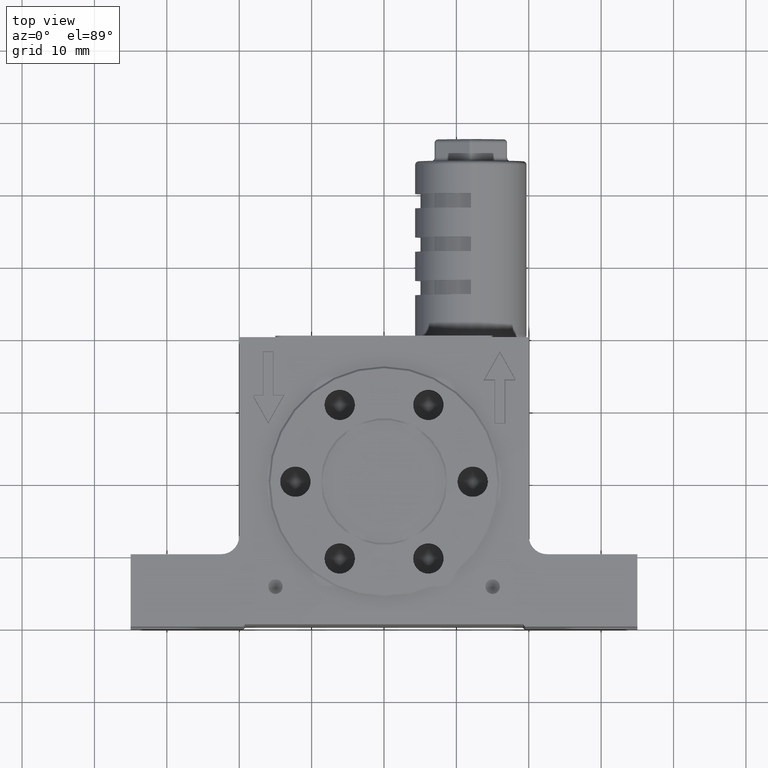
[diagram: clean part render]
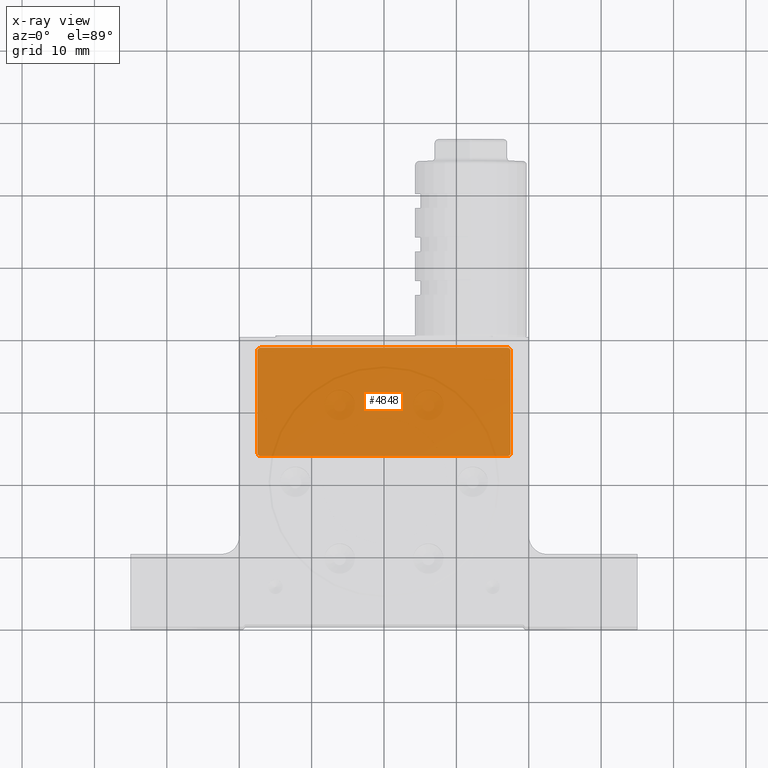
[diagram: x-ray — body ghosted, one internal face saturated and labeled with its STEP entity id]
A machine part, top view, then the same camera in x-ray: the body is ghosted and one INTERNAL B-rep face — a face not visible from any outside direction — is saturated and labeled: STEP entity #4848.
In plain terms, the highlighted planar face has unit normal (-0, -0, 1).
Its self-contained STEP definition (entity closure, byte-faithful):
#14 = VERTEX_POINT ( 'NONE', #5817 ) ;
#1085 = EDGE_LOOP ( 'NONE', ( #22144, #2635, #1824, #23169, #19211, #22842, #14400, #18018 ) ) ;
#1458 = DIRECTION ( 'NONE',  ( 2.095411779493314700E-030, -2.822144597828459900E-030, 1.000000000000000000 ) ) ;
#1676 = VERTEX_POINT ( 'NONE', #15606 ) ;
#1763 = CARTESIAN_POINT ( 'NONE',  ( 17.50000000000000000, 4.000000000000000000, -13.50000000000000000 ) ) ;
#1824 = ORIENTED_EDGE ( 'NONE', *, *, #14487, .F. ) ;
#1945 = EDGE_CURVE ( 'NONE', #22995, #14, #6394, .T. ) ;
#2000 = CARTESIAN_POINT ( 'NONE',  ( -17.50000000000000000, 19.00000000000000000, -13.50000000000000000 ) ) ;
#2027 = VECTOR ( 'NONE', #12078, 1000.000000000000000 ) ;
#2635 = ORIENTED_EDGE ( 'NONE', *, *, #21929, .T. ) ;
#2655 = EDGE_CURVE ( 'NONE', #21162, #8815, #19303, .T. ) ;
#2804 = DIRECTION ( 'NONE',  ( 2.095411779493314700E-030, -2.822144597828459900E-030, 1.000000000000000000 ) ) ;
#2948 = EDGE_CURVE ( 'NONE', #20481, #9019, #4648, .T. ) ;
#3059 = CARTESIAN_POINT ( 'NONE',  ( -17.00000000000000000, 18.50000000000000000, -13.50000000000000000 ) ) ;
#3130 = DIRECTION ( 'NONE',  ( 1.000000000000000000, 0.0000000000000000000, 0.0000000000000000000 ) ) ;
#3239 = CARTESIAN_POINT ( 'NONE',  ( 17.00000000000000000, 4.500000000000000000, -13.50000000000000000 ) ) ;
#3524 = VECTOR ( 'NONE', #3617, 1000.000000000000000 ) ;
#3617 = DIRECTION ( 'NONE',  ( -1.000000000000000000, 3.520291789548760100E-029, -2.230997247578175100E-030 ) ) ;
#3777 = CARTESIAN_POINT ( 'NONE',  ( 17.50000000000000000, 19.00000000000000000, -13.50000000000000000 ) ) ;
#4007 = CARTESIAN_POINT ( 'NONE',  ( 17.50000000000000000, 19.00000000000000000, -13.50000000000000000 ) ) ;
#4648 = CIRCLE ( 'NONE', #15862, 0.5000000000000004400 ) ;
#4797 = CIRCLE ( 'NONE', #21915, 0.5000000000000004400 ) ;
#4848 = ADVANCED_FACE ( 'NONE', ( #16060 ), #15000, .T. ) ;
#5607 = DIRECTION ( 'NONE',  ( -2.230997247578175100E-030, -2.822144597828460300E-030, 1.000000000000000000 ) ) ;
#5620 = DIRECTION ( 'NONE',  ( 3.268842376009564900E-029, -1.000000000000000000, 2.988032536986015300E-030 ) ) ;
#5817 = CARTESIAN_POINT ( 'NONE',  ( -17.50000000000000000, 4.500000000000000000, -13.50000000000000000 ) ) ;
#6194 = EDGE_CURVE ( 'NONE', #14, #8815, #7640, .T. ) ;
#6394 = LINE ( 'NONE', #2000, #23068 ) ;
#6613 = DIRECTION ( 'NONE',  ( 1.000000000000000000, 0.0000000000000000000, 0.0000000000000000000 ) ) ;
#6983 = EDGE_CURVE ( 'NONE', #1676, #22995, #4797, .T. ) ;
#7640 = CIRCLE ( 'NONE', #17623, 0.5000000000000004400 ) ;
#7775 = VECTOR ( 'NONE', #5620, 1000.000000000000000 ) ;
#8545 = AXIS2_PLACEMENT_3D ( 'NONE', #3239, #8613, #6613 ) ;
#8613 = DIRECTION ( 'NONE',  ( 2.095411779493314700E-030, -2.822144597828459900E-030, 1.000000000000000000 ) ) ;
#8815 = VERTEX_POINT ( 'NONE', #21675 ) ;
#9019 = VERTEX_POINT ( 'NONE', #20520 ) ;
#10081 = LINE ( 'NONE', #19197, #2027 ) ;
#10220 = VERTEX_POINT ( 'NONE', #19640 ) ;
#12078 = DIRECTION ( 'NONE',  ( -1.000000000000000000, 3.520291789548760100E-029, -2.230997247578175100E-030 ) ) ;
#12963 = CIRCLE ( 'NONE', #8545, 0.5000000000000004400 ) ;
#13049 = AXIS2_PLACEMENT_3D ( 'NONE', #4007, #5607, #18746 ) ;
#13802 = DIRECTION ( 'NONE',  ( 1.000000000000000000, 0.0000000000000000000, 0.0000000000000000000 ) ) ;
#13889 = CARTESIAN_POINT ( 'NONE',  ( 17.00000000000000000, 18.50000000000000000, -13.50000000000000000 ) ) ;
#14308 = DIRECTION ( 'NONE',  ( 1.000000000000000000, 0.0000000000000000000, 0.0000000000000000000 ) ) ;
#14400 = ORIENTED_EDGE ( 'NONE', *, *, #1945, .T. ) ;
#14487 = EDGE_CURVE ( 'NONE', #20481, #10220, #20117, .T. ) ;
#15000 = PLANE ( 'NONE',  #13049 ) ;
#15606 = CARTESIAN_POINT ( 'NONE',  ( -17.00000000000000000, 19.00000000000000000, -13.50000000000000000 ) ) ;
#15862 = AXIS2_PLACEMENT_3D ( 'NONE', #13889, #2804, #13802 ) ;
#16060 = FACE_OUTER_BOUND ( 'NONE', #1085, .T. ) ;
#17623 = AXIS2_PLACEMENT_3D ( 'NONE', #21527, #1458, #14308 ) ;
#18018 = ORIENTED_EDGE ( 'NONE', *, *, #6194, .T. ) ;
#18746 = DIRECTION ( 'NONE',  ( 1.000000000000000000, -3.520291789548760100E-029, 2.230997247578175100E-030 ) ) ;
#19197 = CARTESIAN_POINT ( 'NONE',  ( 17.50000000000000000, 19.00000000000000000, -13.50000000000000000 ) ) ;
#19211 = ORIENTED_EDGE ( 'NONE', *, *, #21893, .T. ) ;
#19303 = LINE ( 'NONE', #1763, #3524 ) ;
#19640 = CARTESIAN_POINT ( 'NONE',  ( 17.50000000000000000, 4.500000000000000000, -13.50000000000000000 ) ) ;
#19942 = CARTESIAN_POINT ( 'NONE',  ( 17.00000000000000000, 4.000000000000000000, -13.50000000000000000 ) ) ;
#20117 = LINE ( 'NONE', #3777, #7775 ) ;
#20481 = VERTEX_POINT ( 'NONE', #22868 ) ;
#20520 = CARTESIAN_POINT ( 'NONE',  ( 17.00000000000000000, 19.00000000000000000, -13.50000000000000000 ) ) ;
#20994 = CARTESIAN_POINT ( 'NONE',  ( -17.50000000000000000, 18.50000000000000000, -13.50000000000000000 ) ) ;
#21162 = VERTEX_POINT ( 'NONE', #19942 ) ;
#21527 = CARTESIAN_POINT ( 'NONE',  ( -17.00000000000000000, 4.500000000000000000, -13.50000000000000000 ) ) ;
#21675 = CARTESIAN_POINT ( 'NONE',  ( -17.00000000000000000, 4.000000000000000000, -13.50000000000000000 ) ) ;
#21893 = EDGE_CURVE ( 'NONE', #9019, #1676, #10081, .T. ) ;
#21915 = AXIS2_PLACEMENT_3D ( 'NONE', #3059, #23119, #3130 ) ;
#21929 = EDGE_CURVE ( 'NONE', #21162, #10220, #12963, .T. ) ;
#22144 = ORIENTED_EDGE ( 'NONE', *, *, #2655, .F. ) ;
#22214 = DIRECTION ( 'NONE',  ( 3.268842376009564900E-029, -1.000000000000000000, 2.988032536986015300E-030 ) ) ;
#22842 = ORIENTED_EDGE ( 'NONE', *, *, #6983, .T. ) ;
#22868 = CARTESIAN_POINT ( 'NONE',  ( 17.50000000000000000, 18.50000000000000000, -13.50000000000000000 ) ) ;
#22995 = VERTEX_POINT ( 'NONE', #20994 ) ;
#23068 = VECTOR ( 'NONE', #22214, 1000.000000000000000 ) ;
#23119 = DIRECTION ( 'NONE',  ( 2.095411779493314700E-030, -2.822144597828459900E-030, 1.000000000000000000 ) ) ;
#23169 = ORIENTED_EDGE ( 'NONE', *, *, #2948, .T. ) ;